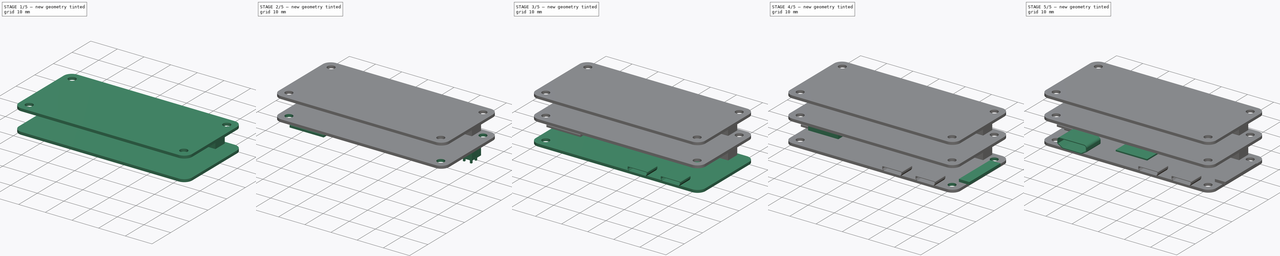
[diagram: build sequence overview — one tinted view per stage of 5, left to right]
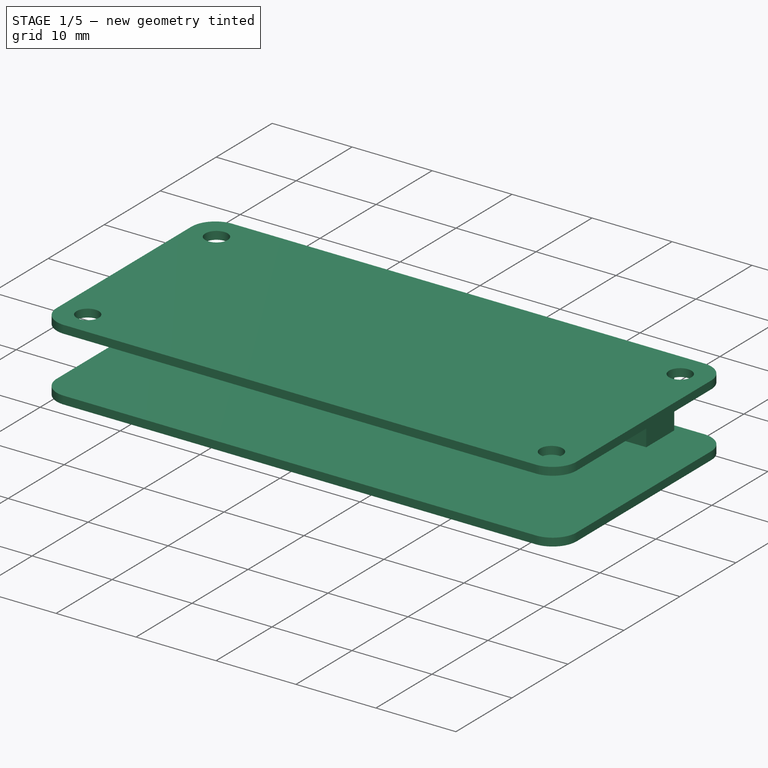
[diagram: stage 1 of 5 — iso view after this stage's code; geometry added in this stage tinted green]
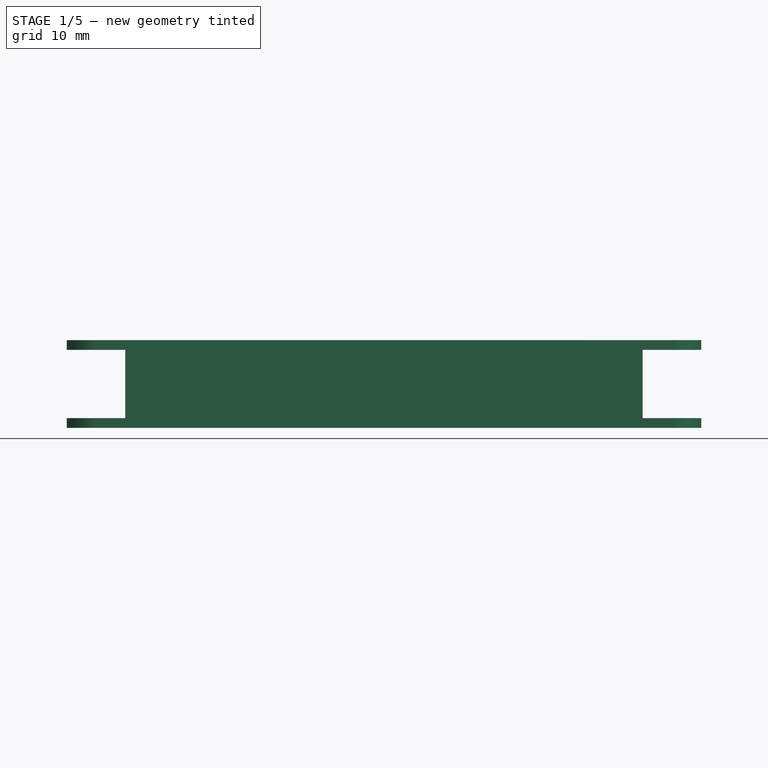
[diagram: stage 1 of 5 — front view after this stage's code; geometry added in this stage tinted green]
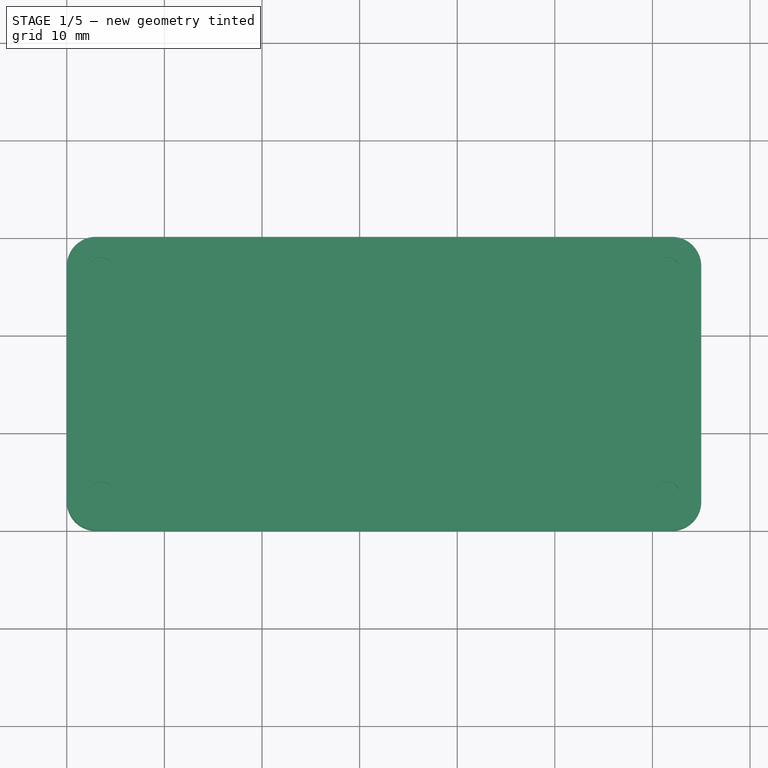
[diagram: stage 1 of 5 — top view after this stage's code; geometry added in this stage tinted green]
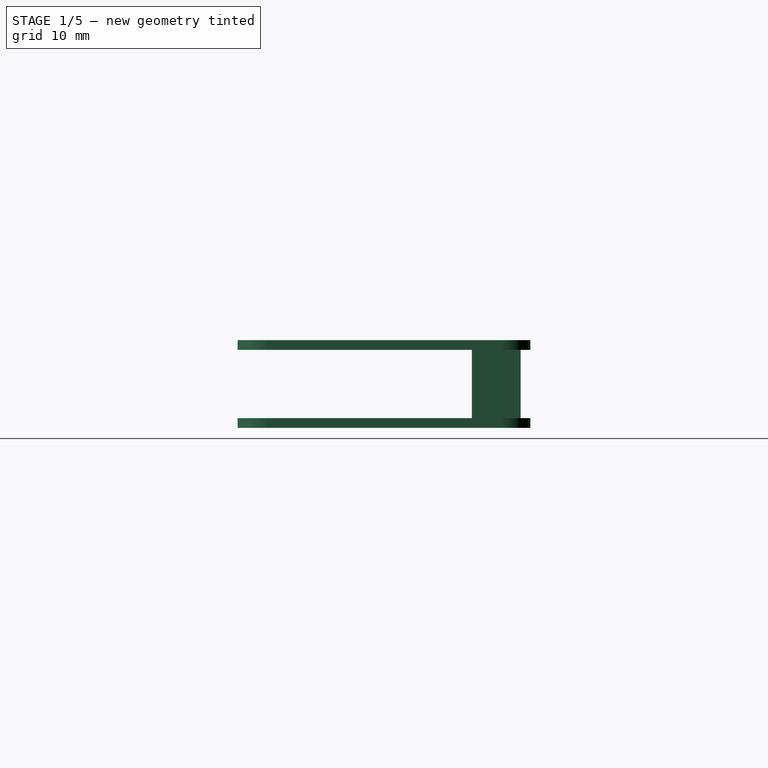
[diagram: stage 1 of 5 — right view after this stage's code; geometry added in this stage tinted green]
FCSTD DOCUMENT  (FreeCAD 1.0R38641 +468 (Git))
Label: PiZeroPCB-V1-1_3-Ver009-030818
License: All rights reserved
LicenseURL: http://en.wikipedia.org/wiki/All_rights_reserved
objects: Sketcher::SketchObject×18, PartDesign::Pad×13, PartDesign::Body×13, PartDesign::ShapeBinder×11, PartDesign::Fillet×8, PartDesign::LinearPattern×8, PartDesign::Pocket×4, App::DocumentObjectGroup×4, PartDesign::Thickness×3, PartDesign::MultiTransform×1, PartDesign::FeatureBase×1, App::Part×1
note: 164 computed .brp shape members not serialized (recipe doc carries the construction recipe); baked Part::Feature solids carry a one-line shape summary decoded from their .brp

FEATURE [PartDesign::Body] Body009  label="40Pin-Female-Header"
  AllowCompound = false
  Group = -> [ReferencePad001,Sketch014,Pad011]
  Origin = -> Origin009
  Tip = -> Pad011
FEATURE [PartDesign::ShapeBinder] ReferencePad011
  Placement = pos=(0,0,5) rot=(0,0,1;0rad)
  Support = -> [Pad011]
  TraceSupport = false
FEATURE [Sketcher::SketchObject] Sketch015
  ArcFitTolerance = 0
  AttachmentSupport = -> [ReferencePad011]
  FullyConstrained = true
  MakeInternals = false
  MapMode = 5
  Placement = pos=(0,0,8.5) rot=(0,0,1;0rad)
  sketch-geometry (4):
    g0: LineSegment StartX=0 StartY=30 StartZ=0 EndX=65 EndY=30 EndZ=0
    g1: LineSegment StartX=65 StartY=30 StartZ=0 EndX=65 EndY=0 EndZ=0
    g2: LineSegment StartX=65 StartY=0 StartZ=0 EndX=0 EndY=0 EndZ=0
    g3: LineSegment StartX=0 StartY=0 StartZ=0 EndX=0 EndY=30 EndZ=0
  constraints (12):
    c: Coincident(g0,g1)
    c: Coincident(g1,g2)
    c: Coincident(g2,g3)
    c: Coincident(g3,g0)
    c: Horizontal(g0)
    c: Horizontal(g2)
    c: Vertical(g1)
    c: Vertical(g3)
    c: DistanceX(g0,g0) = 65
    c: DistanceX(g-1,g2) = 0
    c: DistanceY(g1,g1) = 30
    c: DistanceY(g-1,g1) = 0
FEATURE [PartDesign::Pad] Pad012
  AllowMultiFace = false
  Direction = (0,0,1)
  Length = 1
  Length2 = 100
  Placement = pos=(0,0,5) rot=(0,0,1;0rad)
  Profile = -> Sketch015
  Suppressed = false
  Type = 0
FEATURE [PartDesign::Fillet] Fillet006
  Base = -> Pad012 [Edge8,Edge1,Edge2,Edge5]
  BaseFeature = -> Pad012
  Placement = pos=(0,0,5) rot=(0,0,1;0rad)
  Radius = 3
  Refine = true
  SupportTransform = false
  Suppressed = false
  UseAllEdges = false
FEATURE [PartDesign::Body] Body010  label="Phat PCB"
  AllowCompound = false
  Group = -> [ReferencePad011,Sketch015,Pad012,Fillet006,Sketch016,Pocket002,LinearPattern006]
  Origin = -> Origin010
  Tip = -> LinearPattern006
FEATURE [App::DocumentObjectGroup] Group002  label="Phat 1"
  Group = -> [Body009,Body010]
FEATURE [PartDesign::ShapeBinder] ReferenceLinearPattern006
  Placement = pos=(0,0,5) rot=(0,0,1;0rad)
  Support = -> [LinearPattern006]
  TraceSupport = false
FEATURE [Sketcher::SketchObject] Sketch017
  ArcFitTolerance = 0
  AttachmentSupport = -> [ReferenceLinearPattern006]
  FullyConstrained = true
  MakeInternals = false
  MapMode = 5
  Placement = pos=(0,0,9.5) rot=(0,0,1;0rad)
  sketch-geometry (4):
    g0: LineSegment StartX=6 StartY=29 StartZ=0 EndX=59 EndY=29 EndZ=0
    g1: LineSegment StartX=59 StartY=29 StartZ=0 EndX=59 EndY=24 EndZ=0
    g2: LineSegment StartX=59 StartY=24 StartZ=0 EndX=6 EndY=24 EndZ=0
    g3: LineSegment StartX=6 StartY=24 StartZ=0 EndX=6 EndY=29 EndZ=0
  constraints (12):
    c: Coincident(g0,g1)
    c: Coincident(g1,g2)
    c: Coincident(g2,g3)
    c: Coincident(g3,g0)
    c: Horizontal(g0)
    c: Horizontal(g2)
    c: Vertical(g1)
    c: Vertical(g3)
    c: DistanceY(g1,g1) = 5
    c: DistanceX(g-1,g2) = 6
    c: DistanceX(g0,g0) = 53
    c: DistanceY(g-1,g2) = 24
FEATURE [PartDesign::Pad] Pad013  label="Phat 2 Header"
  AllowMultiFace = false
  Direction = (0,0,1)
  Length = 7
  Length2 = 100
  Placement = pos=(0,0,5) rot=(0,0,1;0rad)
  Profile = -> Sketch017
  Suppressed = false
  Type = 0
FEATURE [PartDesign::Body] Body011  label="Phat 2 40 Pin Header"
  AllowCompound = false
  Group = -> [ReferenceLinearPattern006,Sketch017,Pad013]
  Origin = -> Origin011
  Tip = -> Pad013
FEATURE [PartDesign::ShapeBinder] ReferencePad013
  Placement = pos=(0,0,7) rot=(0,0,1;0rad)
  Support = -> [Pad013]
  TraceSupport = false
FEATURE [Sketcher::SketchObject] Sketch018
  ArcFitTolerance = 0
  AttachmentSupport = -> [ReferencePad013]
  FullyConstrained = true
  MakeInternals = false
  MapMode = 5
  Placement = pos=(0,0,16.5) rot=(0,0,1;0rad)
  sketch-geometry (4):
    g0: LineSegment StartX=0 StartY=30 StartZ=0 EndX=65 EndY=30 EndZ=0
    g1: LineSegment StartX=65 StartY=30 StartZ=0 EndX=65 EndY=0 EndZ=0
    g2: LineSegment StartX=65 StartY=0 StartZ=0 EndX=0 EndY=0 EndZ=0
    g3: LineSegment StartX=0 StartY=0 StartZ=0 EndX=0 EndY=30 EndZ=0
  constraints (12):
    c: Coincident(g0,g1)
    c: Coincident(g1,g2)
    c: Coincident(g2,g3)
    c: Coincident(g3,g0)
    c: Horizontal(g0)
    c: Horizontal(g2)
    c: Vertical(g1)
    c: Vertical(g3)
    c: DistanceX(g0,g0) = 65
    c: DistanceX(g-1,g2) = 0
    c: DistanceY(g1,g1) = 30
    c: DistanceY(g-1,g2) = 0
FEATURE [PartDesign::Pad] Pad014
  AllowMultiFace = false
  Direction = (0,0,1)
  Length = 1
  Length2 = 100
  Placement = pos=(0,0,7) rot=(0,0,1;0rad)
  Profile = -> Sketch018
  Suppressed = false
  Type = 0
FEATURE [PartDesign::Fillet] Fillet007
  Base = -> Pad014 [Edge8,Edge1,Edge5,Edge2]
  BaseFeature = -> Pad014
  Placement = pos=(0,0,7) rot=(0,0,1;0rad)
  Radius = 3
  Refine = true
  SupportTransform = false
  Suppressed = false
  UseAllEdges = false
FEATURE [Sketcher::SketchObject] Sketch019
  ArcFitTolerance = 0
  AttachmentSupport = -> [Fillet007]
  FullyConstrained = true
  MakeInternals = false
  MapMode = 5
  Placement = pos=(0,0,17.5) rot=(0,0,1;0rad)
  sketch-geometry (2):
    g0: Circle CenterX=3.5 CenterY=26.5 CenterZ=0 NormalX=0 NormalY=0 NormalZ=1 AngleXU=0 Radius=1.4
    g1: Circle CenterX=3.5 CenterY=3.5 CenterZ=0 NormalX=0 NormalY=0 NormalZ=1 AngleXU=0 Radius=1.4
  constraints (6):
    c: DistanceX(g-1,g1) = 3.5
    c: DistanceX(g-1,g0) = 3.5
    c: Radius(g0) = 1.4
    c: Radius(g1) = 1.4
    c: DistanceY(g-1,g1) = 3.5
    c: DistanceY(g1,g0) = 23
FEATURE [PartDesign::Pocket] Pocket003
  AllowMultiFace = false
  BaseFeature = -> Fillet007
  Direction = (0,0,-1)
  Length = 5
  Length2 = 100
  Placement = pos=(0,0,7) rot=(0,0,1;0rad)
  Profile = -> Sketch019
  Suppressed = false
  Type = 0
FEATURE [PartDesign::LinearPattern] LinearPattern007
  BaseFeature = -> Pocket003
  Direction = -> Sketch019 [H_Axis]
  Length = 58
  Mode = 0
  Occurrences = 2
  Offset = 58
  Originals = -> [Pocket003]
  Placement = pos=(0,0,7) rot=(0,0,1;0rad)
  Suppressed = false
  TransformMode = 0
FEATURE [PartDesign::Body] Body012  label="Phat 2 PCB"
  AllowCompound = false
  Group = -> [ReferencePad013,Sketch018,Pad014,Fillet007,Sketch019,Pocket003,LinearPattern007]
  Origin = -> Origin012
  Tip = -> LinearPattern007
FEATURE [App::DocumentObjectGroup] Group003  label="Phat 2"
  Group = -> [Body011,Body012]
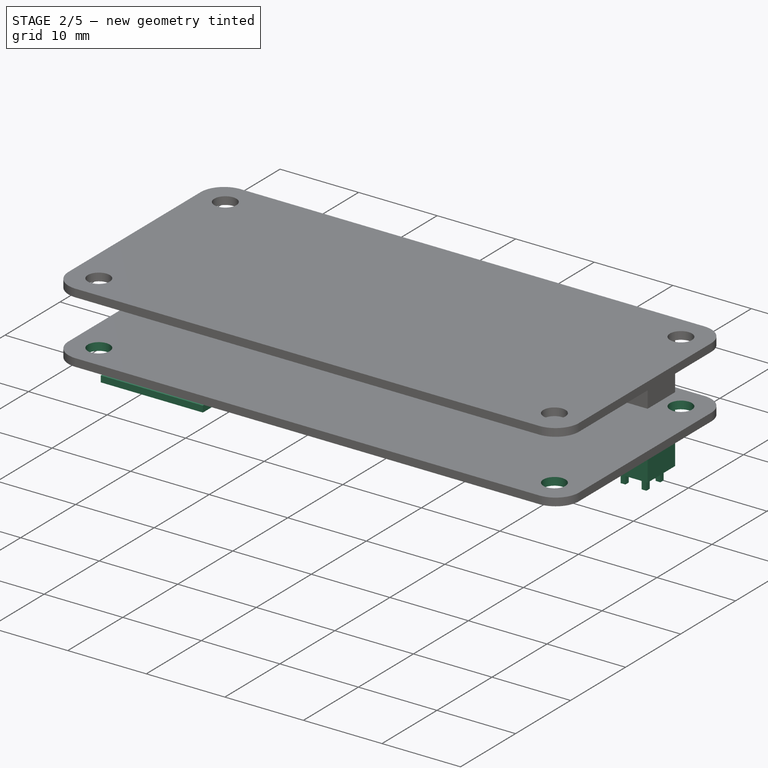
[diagram: stage 2 of 5 — iso view after this stage's code; geometry added in this stage tinted green]
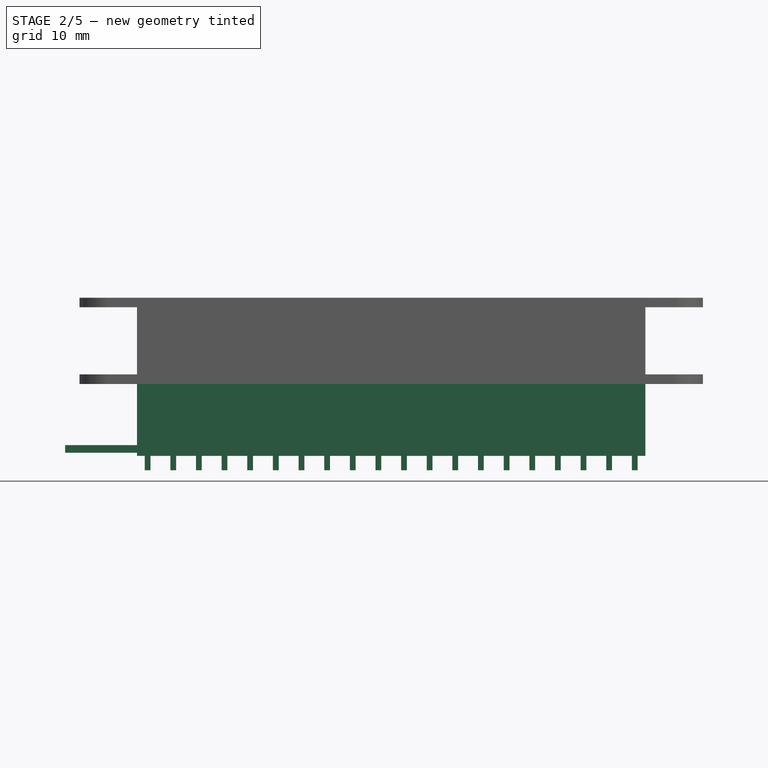
[diagram: stage 2 of 5 — front view after this stage's code; geometry added in this stage tinted green]
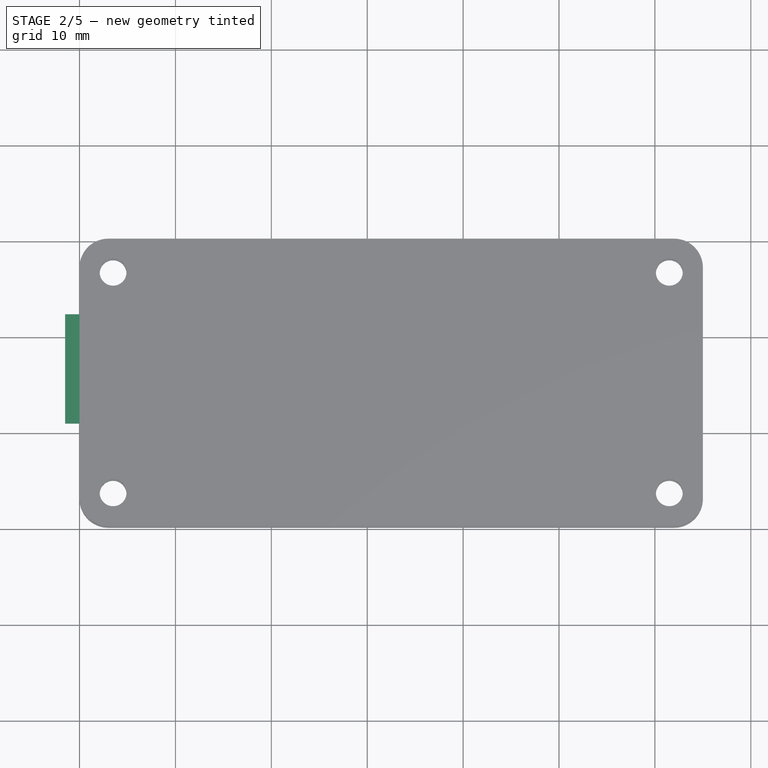
[diagram: stage 2 of 5 — top view after this stage's code; geometry added in this stage tinted green]
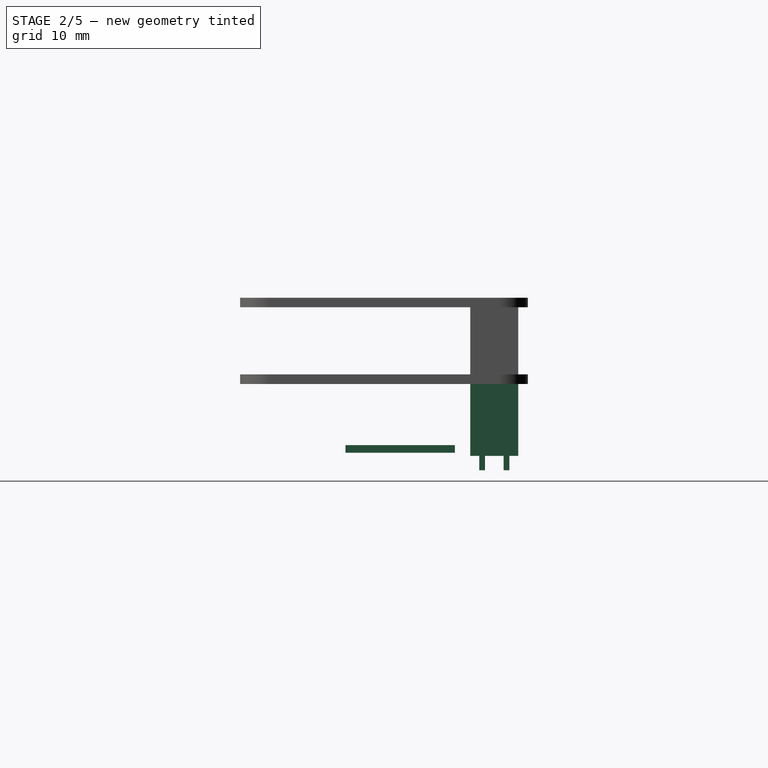
[diagram: stage 2 of 5 — right view after this stage's code; geometry added in this stage tinted green]
FEATURE [PartDesign::ShapeBinder] ReferenceMultiTransform
  Support = -> [MultiTransform]
  TraceSupport = false
FEATURE [Sketcher::SketchObject] Sketch002
  ArcFitTolerance = 0
  AttachmentSupport = -> [ReferenceMultiTransform]
  FullyConstrained = false
  MakeInternals = false
  MapMode = 5
  Placement = pos=(0,0,1) rot=(0,0,1;0rad)
  sketch-geometry (6):
    g0: LineSegment StartX=6 StartY=29 StartZ=0 EndX=59 EndY=29 EndZ=0
    g1: LineSegment StartX=59 StartY=29 StartZ=0 EndX=59 EndY=24 EndZ=0
    g2: LineSegment StartX=59 StartY=24 StartZ=0 EndX=6 EndY=24 EndZ=0
    g3: LineSegment StartX=6 StartY=24 StartZ=0 EndX=6 EndY=29 EndZ=0
    g4: LineSegment [constr] StartX=32.5 StartY=46.2479 StartZ=0 EndX=32.5 EndY=10.9519 EndZ=0
    g5: LineSegment [constr] StartX=27.6198 StartY=26.5 StartZ=0 EndX=36.7296 EndY=26.5 EndZ=0
  constraints (16):
    c: Coincident(g0,g1)
    c: Coincident(g1,g2)
    c: Coincident(g2,g3)
    c: Coincident(g3,g0)
    c: Horizontal(g0)
    c: Horizontal(g2)
    c: Vertical(g1)
    c: Vertical(g3)
    c: DistanceX(g0,g0) = 53
    c: DistanceY(g1,g1) = 5
    c: Vertical(g4)
    c: DistanceX(g-1,g4) = 32.5
    c: Horizontal(g5)
    c: DistanceY(g-1,g5) = 26.5
    c: DistanceY(g5,g0) = 2.5
    c: DistanceX(g2,g4) = 26.5
FEATURE [PartDesign::Pad] Pad001  label="Main Body Header"
  AllowMultiFace = false
  Direction = (0,0,1)
  Length = 2.5
  Length2 = 100
  Profile = -> Sketch002
  Suppressed = false
  Type = 0
FEATURE [PartDesign::Body] Body  label="Zero PCB"
  AllowCompound = false
  Group = -> [Sketch,Pad,Fillet,Sketch001,Pocket,LinearPattern,LinearPattern001,MultiTransform,LinearPattern002,LinearPattern003,Sketch003,Pocket001,LinearPattern004]
  Origin = -> Origin
  Tip = -> LinearPattern004
FEATURE [Sketcher::SketchObject] Sketch005
  ArcFitTolerance = 0
  AttachmentSupport = -> [Pad001]
  ExternalGeometry = -> [Pad001]
  FullyConstrained = true
  MakeInternals = false
  MapMode = 5
  Placement = pos=(0,0,3.5) rot=(0,0,1;0rad)
  sketch-geometry (8):
    g0: LineSegment StartX=6.8 StartY=28.07 StartZ=0 EndX=7.4 EndY=28.07 EndZ=0
    g1: LineSegment StartX=7.4 StartY=28.07 StartZ=0 EndX=7.4 EndY=27.47 EndZ=0
    g2: LineSegment StartX=7.4 StartY=27.47 StartZ=0 EndX=6.8 EndY=27.47 EndZ=0
    g3: LineSegment StartX=6.8 StartY=27.47 StartZ=0 EndX=6.8 EndY=28.07 EndZ=0
    g4: LineSegment StartX=6.8 StartY=25.53 StartZ=0 EndX=7.4 EndY=25.53 EndZ=0
    g5: LineSegment StartX=7.4 StartY=25.53 StartZ=0 EndX=7.4 EndY=24.93 EndZ=0
    g6: LineSegment StartX=7.4 StartY=24.93 StartZ=0 EndX=6.8 EndY=24.93 EndZ=0
    g7: LineSegment StartX=6.8 StartY=24.93 StartZ=0 EndX=6.8 EndY=25.53 EndZ=0
  constraints (24):
    c: Coincident(g0,g1)
    c: Coincident(g1,g2)
    c: Coincident(g2,g3)
    c: Coincident(g3,g0)
    c: Horizontal(g0)
    c: Horizontal(g2)
    c: Vertical(g1)
    c: Vertical(g3)
    c: DistanceY(g1,g1) = 0.6
    c: DistanceX(g0,g0) = 0.6
    c: DistanceX(g-3,g0) = 0.8
    c: DistanceY(g0,g-3) = 0.93
    c: Coincident(g4,g5)
    c: Coincident(g5,g6)
    c: Coincident(g6,g7)
    c: Coincident(g7,g4)
    c: Horizontal(g4)
    c: Horizontal(g6)
    c: Vertical(g5)
    c: Vertical(g7)
    c: DistanceX(g4,g4) = 0.6
    c: DistanceY(g5,g5) = 0.6
    c: DistanceY(g4,g1) = 1.94
    c: DistanceX(g2,g4) = 0
FEATURE [PartDesign::Pad] Pad003  label="Pin1"
  AllowMultiFace = false
  BaseFeature = -> Pad001
  Direction = (0,0,1)
  Length = 6.8
  Length2 = 4
  Profile = -> Sketch005
  Suppressed = false
  Type = 4
FEATURE [PartDesign::Body] CloneBody
  AllowCompound = false
  Group = -> [Clone]
  Origin = -> Origin007
  Tip = -> Clone
FEATURE [App::Part] Part  label="USB002"
  Group = -> [CloneBody]
  License = CC BY 3.0
  LicenseURL = http://creativecommons.org/licenses/by/3.0/
  Origin = -> Origin006
FEATURE [App::DocumentObjectGroup] Group  label="USB-Group"
  Group = -> [Body003,Part]
FEATURE [PartDesign::ShapeBinder] CopyThickness003
  TraceSupport = false
FEATURE [Sketcher::SketchObject] Sketch013
  ArcFitTolerance = 0
  AttachmentSupport = -> [CopyThickness003]
  FullyConstrained = false
  MakeInternals = false
  MapMode = 5
  Placement = pos=(1.5,0,0) rot=(0.57735,-0.57735,-0.57735;2.0944rad)
  sketch-geometry (4):
    g0: LineSegment StartX=-22.3917 StartY=2.12829 StartZ=0 EndX=-10.9917 EndY=2.12829 EndZ=0
    g1: LineSegment StartX=-10.9917 StartY=2.12829 StartZ=0 EndX=-10.9917 EndY=1.32829 EndZ=0
    g2: LineSegment StartX=-10.9917 StartY=1.32829 StartZ=0 EndX=-22.3917 EndY=1.32829 EndZ=0
    g3: LineSegment StartX=-22.3917 StartY=1.32829 StartZ=0 EndX=-22.3917 EndY=2.12829 EndZ=0
  constraints (10):
    c: Coincident(g0,g1)
    c: Coincident(g1,g2)
    c: Coincident(g2,g3)
    c: Coincident(g3,g0)
    c: Horizontal(g0)
    c: Horizontal(g2)
    c: Vertical(g1)
    c: Vertical(g3)
    c: DistanceX(g0,g0) = 11.4
    c: DistanceY(g1,g1) = 0.8
FEATURE [PartDesign::Pad] Pad010
  AllowMultiFace = false
  Direction = (-1,0,0)
  Length = 3
  Length2 = 10
  Profile = -> Sketch013
  Suppressed = false
  Type = 4
FEATURE [PartDesign::Body] Body008  label="MicroSDCard"
  AllowCompound = false
  Group = -> [CopyThickness003,Sketch013,Pad010,Fillet005]
  Origin = -> Origin008
  Tip = -> Fillet005
FEATURE [PartDesign::LinearPattern] LinearPattern005
  BaseFeature = -> Pad003
  Direction = -> Sketch005 [H_Axis]
  Length = 50.8
  Mode = 0
  Occurrences = 20
  Offset = 2.67368
  Originals = -> [Pad003]
  Suppressed = false
  TransformMode = 0
FEATURE [PartDesign::Body] Body001  label="40Pin Header"
  AllowCompound = false
  Group = -> [ReferenceMultiTransform,Sketch002,Pad001,Sketch005,Pad003,LinearPattern005]
  Origin = -> Origin001
  Tip = -> LinearPattern005
FEATURE [App::DocumentObjectGroup] Group001  label="Raspberry Pi Zero 1-1.3"
  Group = -> [Body,Body001,Body002,Body005,Body006,Body007,Group,Body008]
FEATURE [PartDesign::ShapeBinder] ReferencePad001
  Placement = pos=(0,0,2.5) rot=(0,0,1;0rad)
  Support = -> [Pad001]
  TraceSupport = false
FEATURE [Sketcher::SketchObject] Sketch014
  ArcFitTolerance = 0
  AttachmentSupport = -> [ReferencePad001]
  FullyConstrained = true
  MakeInternals = false
  MapMode = 5
  Placement = pos=(0,0,3.5) rot=(0,0,1;0rad)
  sketch-geometry (4):
    g0: LineSegment StartX=6 StartY=29 StartZ=0 EndX=59 EndY=29 EndZ=0
    g1: LineSegment StartX=59 StartY=29 StartZ=0 EndX=59 EndY=24 EndZ=0
    g2: LineSegment StartX=59 StartY=24 StartZ=0 EndX=6 EndY=24 EndZ=0
    g3: LineSegment StartX=6 StartY=24 StartZ=0 EndX=6 EndY=29 EndZ=0
  constraints (12):
    c: Coincident(g0,g1)
    c: Coincident(g1,g2)
    c: Coincident(g2,g3)
    c: Coincident(g3,g0)
    c: Horizontal(g0)
    c: Horizontal(g2)
    c: Vertical(g1)
    c: Vertical(g3)
    c: DistanceX(g-1,g2) = 6
    c: DistanceX(g0,g0) = 53
    c: DistanceY(g1,g1) = 5
    c: DistanceY(g-1,g2) = 24
FEATURE [PartDesign::Pad] Pad011  label="40Pin Female Header"
  AllowMultiFace = false
  Direction = (0,0,1)
  Length = 5
  Length2 = 100
  Placement = pos=(0,0,2.5) rot=(0,0,1;0rad)
  Profile = -> Sketch014
  Suppressed = false
  Type = 0
FEATURE [Sketcher::SketchObject] Sketch016
  ArcFitTolerance = 0
  AttachmentSupport = -> [Fillet006]
  FullyConstrained = true
  MakeInternals = false
  MapMode = 5
  Placement = pos=(0,0,9.5) rot=(0,0,1;0rad)
  sketch-geometry (2):
    g0: Circle CenterX=3.5 CenterY=3.5 CenterZ=0 NormalX=0 NormalY=0 NormalZ=1 AngleXU=0 Radius=1.4
    g1: Circle CenterX=3.5 CenterY=26.5 CenterZ=0 NormalX=0 NormalY=0 NormalZ=1 AngleXU=0 Radius=1.4
  constraints (6):
    c: DistanceX(g-1,g0) = 3.5
    c: DistanceX(g-1,g1) = 3.5
    c: DistanceY(g-1,g0) = 3.5
    c: DistanceY(g0,g1) = 23
    c: Radius(g1) = 1.4
    c: Radius(g0) = 1.4
FEATURE [PartDesign::Pocket] Pocket002
  AllowMultiFace = false
  BaseFeature = -> Fillet006
  Direction = (0,0,-1)
  Length = 5
  Length2 = 100
  Placement = pos=(0,0,5) rot=(0,0,1;0rad)
  Profile = -> Sketch016
  Suppressed = false
  Type = 0
FEATURE [PartDesign::LinearPattern] LinearPattern006
  BaseFeature = -> Pocket002
  Direction = -> Sketch016 [H_Axis]
  Length = 58
  Mode = 0
  Occurrences = 2
  Offset = 58
  Originals = -> [Pocket002]
  Placement = pos=(0,0,5) rot=(0,0,1;0rad)
  Suppressed = false
  TransformMode = 0
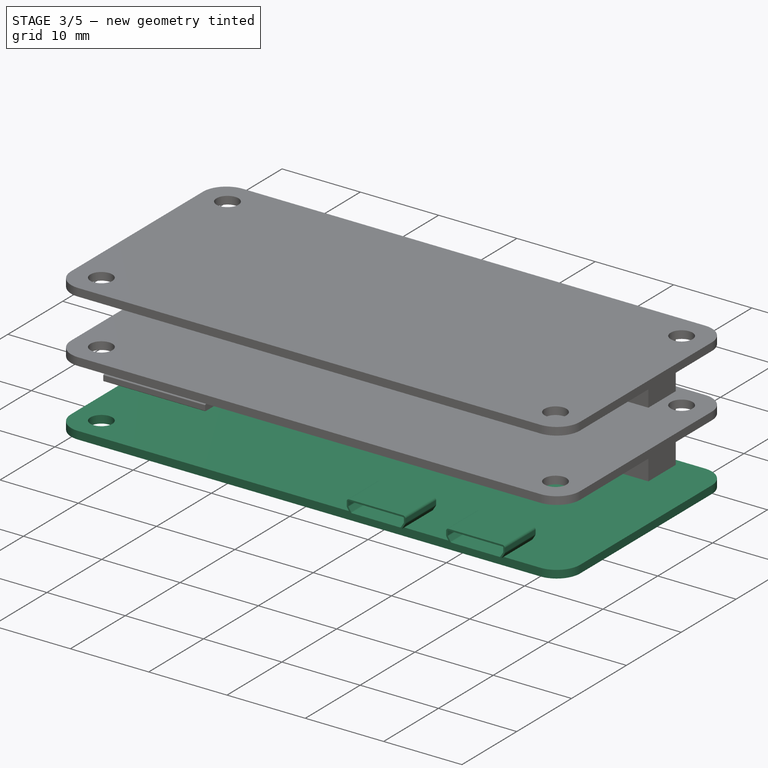
[diagram: stage 3 of 5 — iso view after this stage's code; geometry added in this stage tinted green]
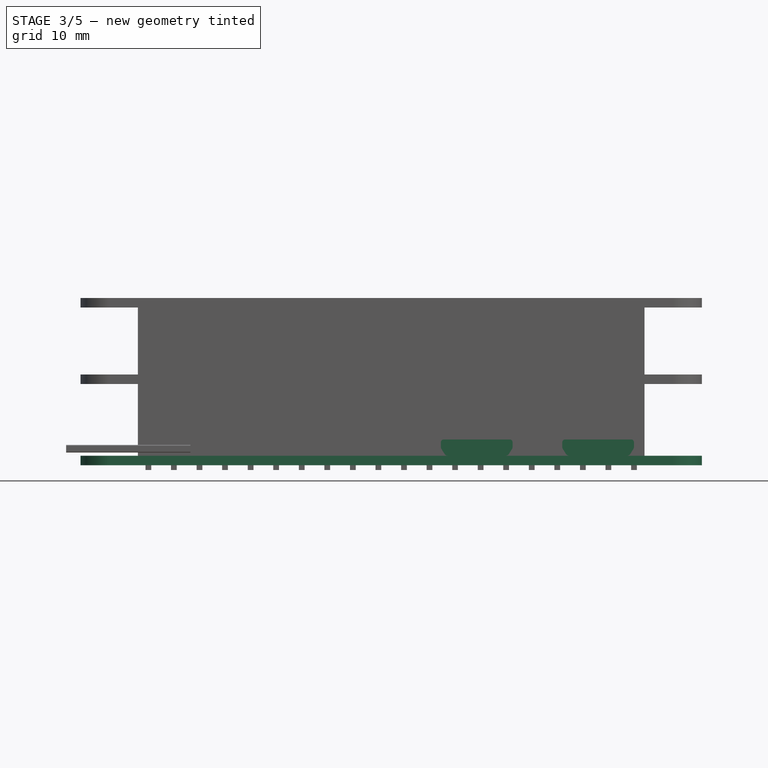
[diagram: stage 3 of 5 — front view after this stage's code; geometry added in this stage tinted green]
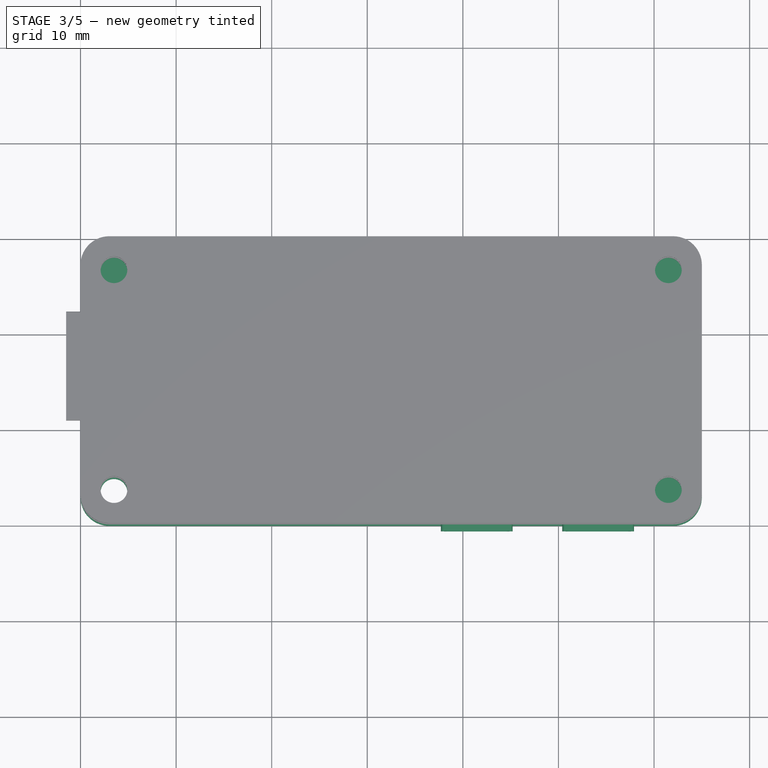
[diagram: stage 3 of 5 — top view after this stage's code; geometry added in this stage tinted green]
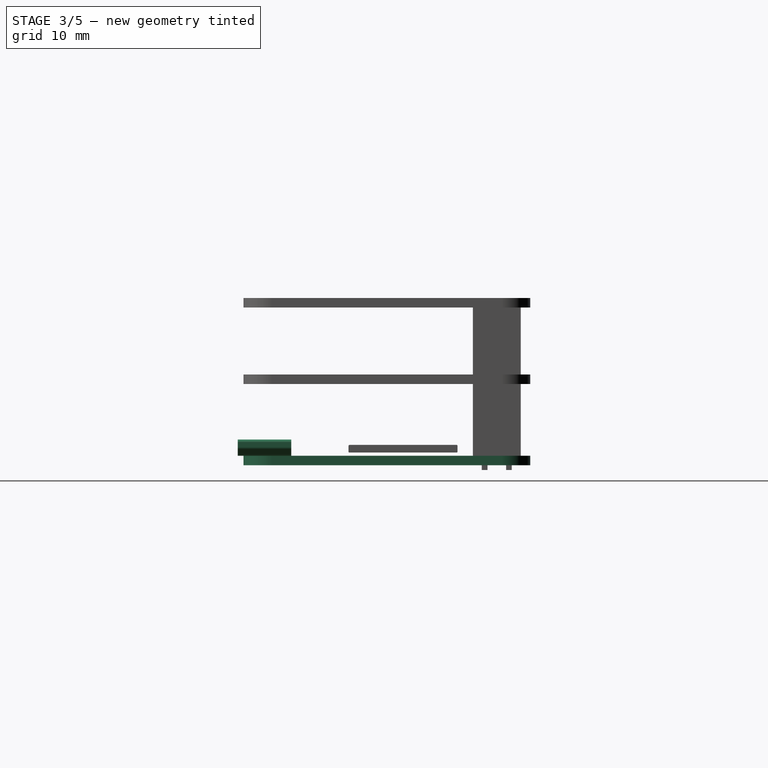
[diagram: stage 3 of 5 — right view after this stage's code; geometry added in this stage tinted green]
FEATURE [Sketcher::SketchObject] Sketch
  ArcFitTolerance = 0
  AttachmentSupport = -> [XY_Plane]
  FullyConstrained = true
  MakeInternals = false
  MapMode = 5
  sketch-geometry (4):
    g0: LineSegment StartX=0 StartY=30 StartZ=0 EndX=65 EndY=30 EndZ=0
    g1: LineSegment StartX=65 StartY=30 StartZ=0 EndX=65 EndY=0 EndZ=0
    g2: LineSegment StartX=65 StartY=0 StartZ=0 EndX=0 EndY=0 EndZ=0
    g3: LineSegment StartX=0 StartY=0 StartZ=0 EndX=0 EndY=30 EndZ=0
  constraints (11):
    c: Coincident(g0,g1)
    c: Coincident(g1,g2)
    c: Coincident(g2,g3)
    c: Coincident(g3,g0)
    c: Horizontal(g0)
    c: Horizontal(g2)
    c: Vertical(g1)
    c: Vertical(g3)
    c: DistanceX(g2,g2) = 65
    c: DistanceY(g1,g1) = 30
    c: Coincident(g2,g-1)
FEATURE [PartDesign::Pad] Pad  label="MaIn PCB"
  AllowMultiFace = false
  Direction = (0,0,1)
  Length = 1
  Length2 = 100
  Profile = -> Sketch
  Suppressed = false
  Type = 0
FEATURE [PartDesign::Fillet] Fillet
  Base = -> Pad [Edge8,Edge2,Edge1,Edge5]
  BaseFeature = -> Pad
  Radius = 3
  Refine = true
  SupportTransform = false
  Suppressed = false
  UseAllEdges = false
FEATURE [Sketcher::SketchObject] Sketch001
  ArcFitTolerance = 0
  AttachmentSupport = -> [Fillet]
  ExternalGeometry = -> [Fillet]
  FullyConstrained = true
  MakeInternals = false
  MapMode = 5
  Placement = pos=(0,0,1) rot=(0,0,1;0rad)
  sketch-geometry (1):
    g0: Circle CenterX=3.5 CenterY=3.5 CenterZ=0 NormalX=0 NormalY=0 NormalZ=1 AngleXU=0 Radius=1.4
  constraints (3):
    c: DistanceX(g-3,g0) = 3.5
    c: DistanceY(g-4,g0) = 3.5
    c: Radius(g0) = 1.4
FEATURE [PartDesign::Pocket] Pocket  label="Bolt Holes"
  AllowMultiFace = false
  BaseFeature = -> Fillet
  Direction = (0,0,-1)
  Length = 5
  Length2 = 100
  Profile = -> Sketch001
  Suppressed = false
  Type = 0
FEATURE [PartDesign::ShapeBinder] ReferenceLinearPattern004001
  Support = -> [LinearPattern004]
  TraceSupport = false
FEATURE [Sketcher::SketchObject] Sketch007
  ArcFitTolerance = 0
  AttachmentSupport = -> [ReferenceLinearPattern004001]
  FullyConstrained = false
  MakeInternals = false
  MapMode = 5
  Placement = pos=(0,0,0) rot=(1,0,0;1.5708rad)
  sketch-geometry (8):
    g0: LineSegment StartX=44.9 StartY=2.7 StartZ=0 EndX=38 EndY=2.7 EndZ=0
    g1: LineSegment StartX=38.2 StartY=1 StartZ=0 EndX=44.7 EndY=1 EndZ=0
    g2: LineSegment StartX=44.7 StartY=1 StartZ=0 EndX=45.2 EndY=1.8 EndZ=0
    g3: LineSegment StartX=45.2 StartY=1.8 StartZ=0 EndX=45.2 EndY=2.4 EndZ=0
    g4: LineSegment StartX=38.2 StartY=1 StartZ=0 EndX=37.7 EndY=1.8 EndZ=0
    g5: LineSegment StartX=37.7 StartY=1.8 StartZ=0 EndX=37.7 EndY=2.4 EndZ=0
    g6: ArcOfCircle CenterX=44.9 CenterY=2.4 CenterZ=0 NormalX=0 NormalY=0 NormalZ=1 AngleXU=0 Radius=0.3 StartAngle=0 EndAngle=1.5708
    g7: ArcOfCircle CenterX=38 CenterY=2.4 CenterZ=0 NormalX=0 NormalY=0 NormalZ=1 AngleXU=0 Radius=0.3 StartAngle=1.5708 EndAngle=3.14159
  constraints (20):
    c: Horizontal(g0)
    c: Horizontal(g1)
    c: DistanceY(g-1,g1) = 1
    c: Coincident(g1,g2)
    c: Coincident(g2,g3)
    c: Coincident(g1,g4)
    c: Coincident(g4,g5)
    c: Vertical(g5)
    c: Vertical(g3)
    c: DistanceX(g4,g2) = 7.5
    c: Tangent(g0,g6) = -1.5708
    c: Tangent(g3,g6) = -1.5708
    c: Tangent(g5,g7) = 1.5708
    c: Tangent(g0,g7) = -1.5708
    c: Radius(g6) = 0.3
    c: DistanceY(g1,g0) = 1.7
    c: DistanceX(g-1,g4) = 37.7
    c: Radius(g7) = 0.3
    c: DistanceX(g4,g1) = 0.5
    c: DistanceX(g1,g2) = 0.5
FEATURE [PartDesign::Pad] Pad005
  AllowMultiFace = false
  Direction = (0,-1,2e-16)
  Length = 0.6
  Length2 = 5
  Profile = -> Sketch007
  Suppressed = false
  Type = 4
FEATURE [PartDesign::Fillet] Fillet004
  Base = -> Pad005 [Edge20,Edge1,Edge5,Edge2]
  BaseFeature = -> Pad005
  Radius = 0.4
  Refine = true
  SupportTransform = false
  Suppressed = false
  UseAllEdges = false
FEATURE [PartDesign::Thickness] Thickness
  Base = -> Fillet004 [Face5]
  BaseFeature = -> Fillet004
  Intersection = false
  Join = 0
  Mode = 0
  Refine = true
  Reversed = true
  SupportTransform = false
  Suppressed = false
  Value = 0.2
FEATURE [PartDesign::Body] Body007  label="Camera1.3"
  AllowCompound = false
  Group = -> [ReferenceLinearPattern004005,Sketch012,Pad009]
  Origin = -> Origin005
  Tip = -> Pad009
FEATURE [PartDesign::FeatureBase] Clone  label="USB1"
  Placement = pos=(12.7,0,0) rot=(0,0,1;0rad)
  Suppressed = false
FEATURE [PartDesign::Fillet] Fillet005
  Base = -> Pad010 [Edge2,Edge5,Edge8,Edge1]
  BaseFeature = -> Pad010
  Radius = 0.1
  Refine = true
  SupportTransform = false
  Suppressed = false
  UseAllEdges = false
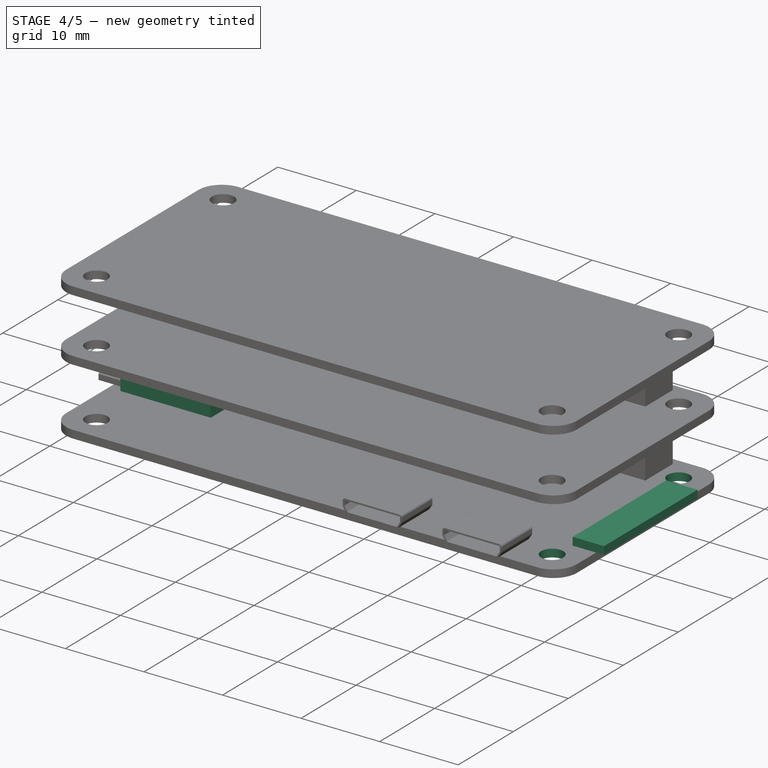
[diagram: stage 4 of 5 — iso view after this stage's code; geometry added in this stage tinted green]
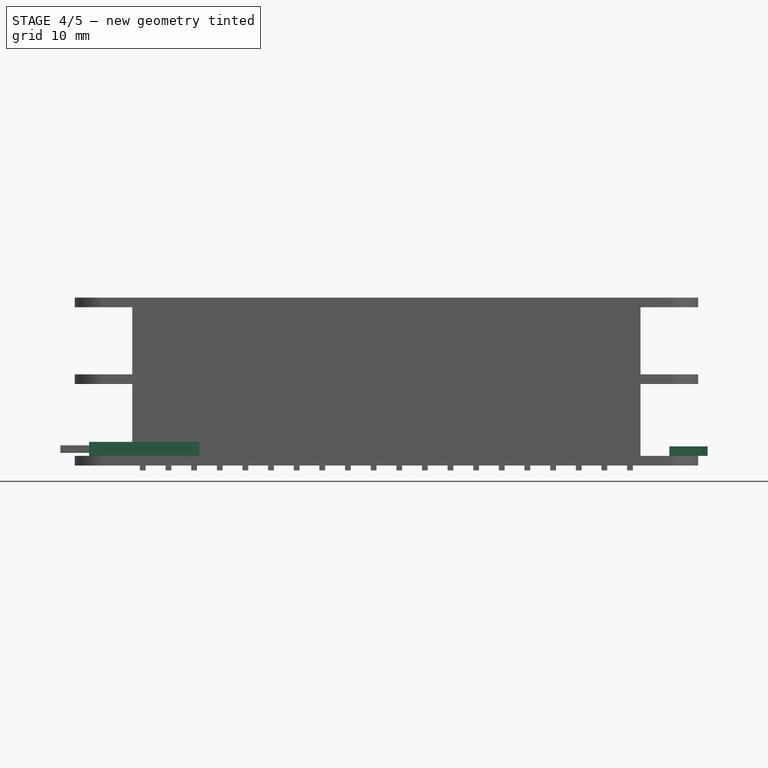
[diagram: stage 4 of 5 — front view after this stage's code; geometry added in this stage tinted green]
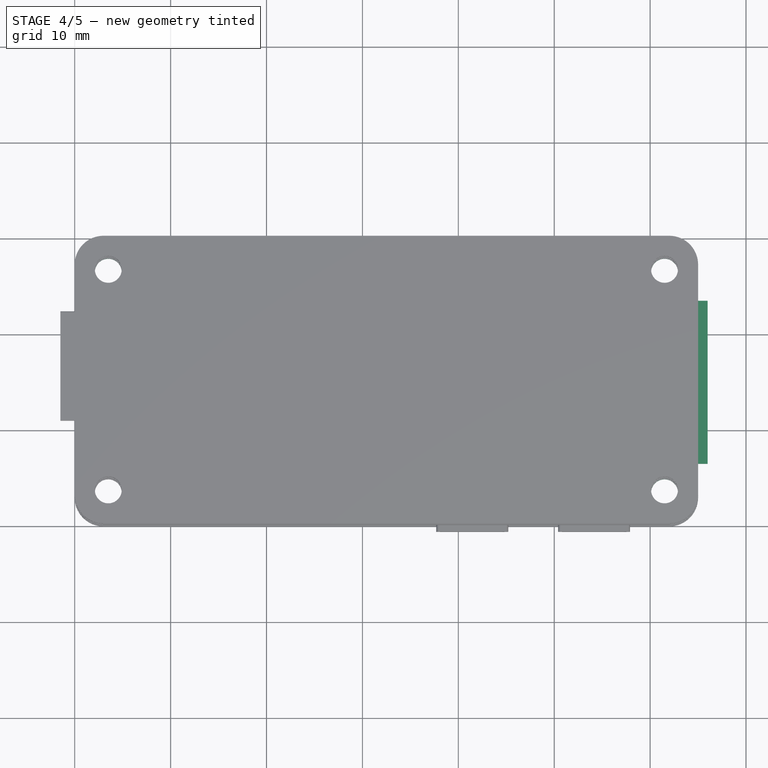
[diagram: stage 4 of 5 — top view after this stage's code; geometry added in this stage tinted green]
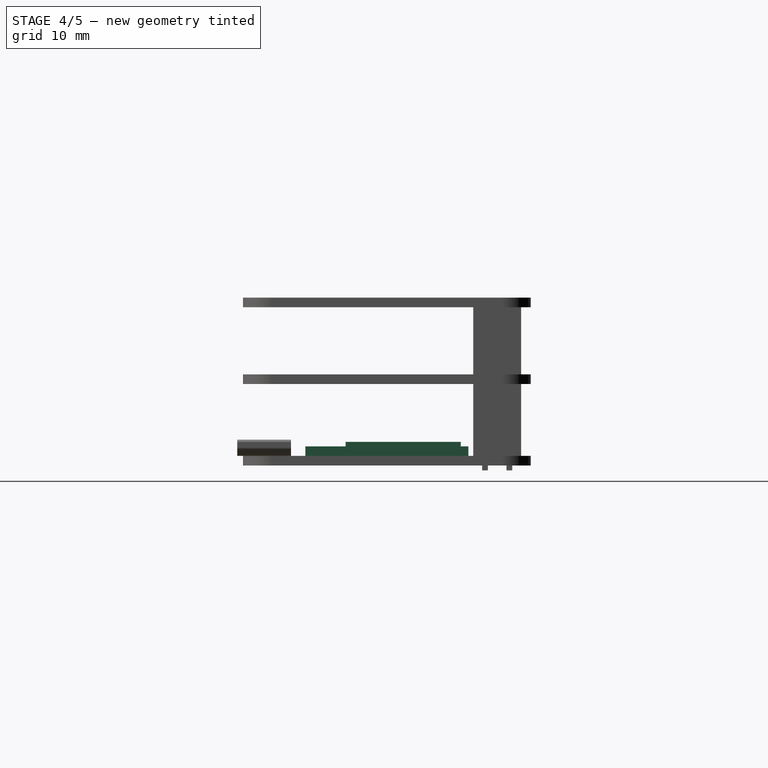
[diagram: stage 4 of 5 — right view after this stage's code; geometry added in this stage tinted green]
FEATURE [PartDesign::LinearPattern] LinearPattern
  BaseFeature = -> Pocket
  Direction = -> Sketch001 [H_Axis]
  Length = 58
  Mode = 0
  Occurrences = 2
  Offset = 58
  Originals = -> [Pocket]
  Suppressed = false
  TransformMode = 0
FEATURE [PartDesign::LinearPattern] LinearPattern001
  BaseFeature = -> LinearPattern
  Direction = -> Sketch001 [V_Axis]
  Length = 23
  Mode = 0
  Occurrences = 2
  Offset = 23
  Originals = -> [Pocket]
  Suppressed = false
  TransformMode = 0
FEATURE [PartDesign::LinearPattern] LinearPattern002
  Direction = -> Sketch001 [H_Axis]
  Length = 58
  Mode = 0
  Occurrences = 2
  Offset = 58
  Suppressed = false
  TransformMode = 0
FEATURE [PartDesign::LinearPattern] LinearPattern003
  Direction = -> Sketch001 [V_Axis]
  Length = 23
  Mode = 0
  Occurrences = 2
  Offset = 23
  Suppressed = false
  TransformMode = 0
FEATURE [PartDesign::MultiTransform] MultiTransform
  BaseFeature = -> LinearPattern001
  Originals = -> [Pocket]
  Suppressed = false
  TransformMode = 0
  Transformations = -> [LinearPattern002,LinearPattern003]
FEATURE [Sketcher::SketchObject] Sketch003
  ArcFitTolerance = 0
  AttachmentSupport = -> [MultiTransform]
  ExternalGeometry = -> [MultiTransform]
  FullyConstrained = true
  MakeInternals = false
  MapMode = 5
  Placement = pos=(0,0,1) rot=(0,0,1;0rad)
  sketch-geometry (2):
    g0: Circle CenterX=7.1 CenterY=27.77 CenterZ=0 NormalX=0 NormalY=0 NormalZ=1 AngleXU=0 Radius=0.5
    g1: Circle CenterX=7.1 CenterY=25.23 CenterZ=0 NormalX=0 NormalY=0 NormalZ=1 AngleXU=0 Radius=0.5
  constraints (6):
    c: DistanceX(g-1,g0) = 7.1
    c: DistanceY(g0,g-3) = 2.23
    c: Radius(g0) = 0.5
    c: DistanceY(g1,g0) = 2.54
    c: DistanceX(g1,g0) = 0
    c: Radius(g1) = 0.5
FEATURE [PartDesign::Pocket] Pocket001  label="Header Holes"
  AllowMultiFace = false
  BaseFeature = -> MultiTransform
  Direction = (0,0,-1)
  Length = 5
  Length2 = 100
  Profile = -> Sketch003
  Suppressed = false
  Type = 0
FEATURE [PartDesign::LinearPattern] LinearPattern004
  BaseFeature = -> Pocket001
  Direction = -> Sketch003 [H_Axis]
  Length = 50.8
  Mode = 0
  Occurrences = 20
  Offset = 2.67368
  Originals = -> [Pocket001]
  Suppressed = false
  TransformMode = 0
FEATURE [PartDesign::Body] Body005  label="Processor"
  AllowCompound = false
  Group = -> [ReferenceLinearPattern004003,Sketch010,Pad007]
  Origin = -> Origin003
  Tip = -> Pad007
FEATURE [PartDesign::ShapeBinder] ReferenceLinearPattern004004
  Support = -> [LinearPattern004]
  TraceSupport = false
FEATURE [Sketcher::SketchObject] Sketch011
  ArcFitTolerance = 0
  AttachmentSupport = -> [ReferenceLinearPattern004004]
  FullyConstrained = true
  MakeInternals = false
  MapMode = 5
  Placement = pos=(0,0,1) rot=(0,0,1;0rad)
  sketch-geometry (4):
    g0: LineSegment StartX=1.5 StartY=22.7 StartZ=0 EndX=13 EndY=22.7 EndZ=0
    g1: LineSegment StartX=13 StartY=22.7 StartZ=0 EndX=13 EndY=10.7 EndZ=0
    g2: LineSegment StartX=13 StartY=10.7 StartZ=0 EndX=1.5 EndY=10.7 EndZ=0
    g3: LineSegment StartX=1.5 StartY=10.7 StartZ=0 EndX=1.5 EndY=22.7 EndZ=0
  constraints (12):
    c: Coincident(g0,g1)
    c: Coincident(g1,g2)
    c: Coincident(g2,g3)
    c: Coincident(g3,g0)
    c: Horizontal(g0)
    c: Horizontal(g2)
    c: Vertical(g1)
    c: Vertical(g3)
    c: DistanceX(g-1,g0) = 13
    c: DistanceY(g2,g0) = 12
    c: DistanceY(g-1,g2) = 10.7
    c: DistanceX(g-1,g2) = 1.5
FEATURE [PartDesign::Pad] Pad008
  AllowMultiFace = false
  Direction = (0,0,1)
  Length = 1.46
  Length2 = 100
  Profile = -> Sketch011
  Suppressed = false
  Type = 0
FEATURE [PartDesign::Body] Body006  label="SDCard"
  AllowCompound = false
  Group = -> [ReferenceLinearPattern004004,Sketch011,Pad008,Fillet003,Thickness003]
  Origin = -> Origin004
  Tip = -> Thickness003
FEATURE [PartDesign::ShapeBinder] ReferenceLinearPattern004005
  Support = -> [LinearPattern004]
  TraceSupport = false
FEATURE [Sketcher::SketchObject] Sketch012
  ArcFitTolerance = 0
  AttachmentSupport = -> [ReferenceLinearPattern004005]
  FullyConstrained = true
  MakeInternals = false
  MapMode = 5
  Placement = pos=(65,0,0) rot=(0.57735,0.57735,0.57735;2.0944rad)
  sketch-geometry (4):
    g0: LineSegment StartX=6.5 StartY=2 StartZ=0 EndX=23.5 EndY=2 EndZ=0
    g1: LineSegment StartX=23.5 StartY=2 StartZ=0 EndX=23.5 EndY=1 EndZ=0
    g2: LineSegment StartX=23.5 StartY=1 StartZ=0 EndX=6.5 EndY=1 EndZ=0
    g3: LineSegment StartX=6.5 StartY=1 StartZ=0 EndX=6.5 EndY=2 EndZ=0
  constraints (12):
    c: Coincident(g0,g1)
    c: Coincident(g1,g2)
    c: Coincident(g2,g3)
    c: Coincident(g3,g0)
    c: Horizontal(g0)
    c: Horizontal(g2)
    c: Vertical(g1)
    c: Vertical(g3)
    c: DistanceY(g-1,g2) = 1
    c: DistanceY(g1,g1) = 1
    c: DistanceX(g0,g0) = 17
    c: DistanceX(g-1,g2) = 6.5
FEATURE [PartDesign::Pad] Pad009  label="Camera Connector"
  AllowMultiFace = false
  Direction = (1,0,0)
  Length = 1
  Length2 = 3
  Profile = -> Sketch012
  Suppressed = false
  Type = 4
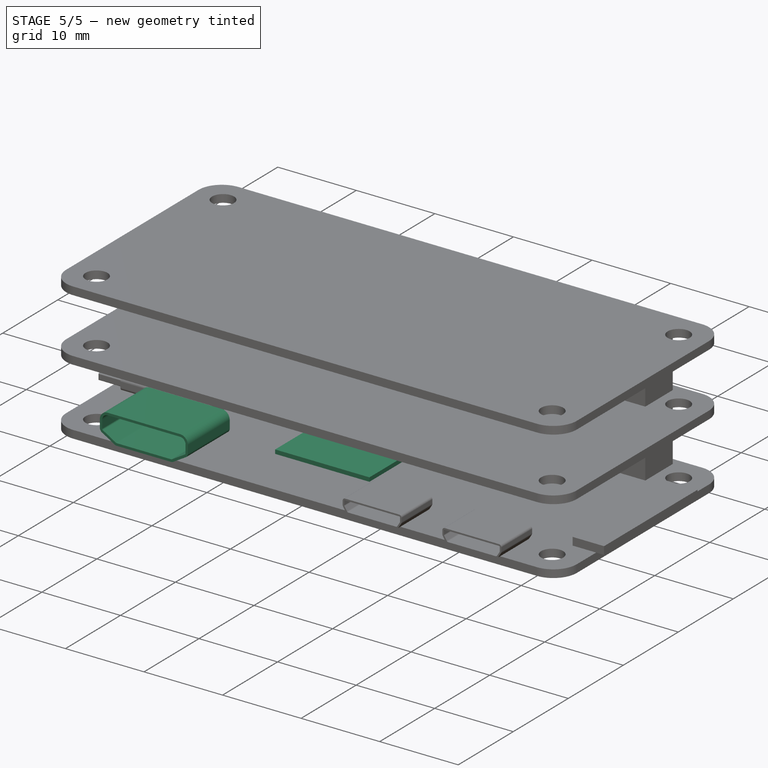
[diagram: stage 5 of 5 — iso view after this stage's code; geometry added in this stage tinted green]
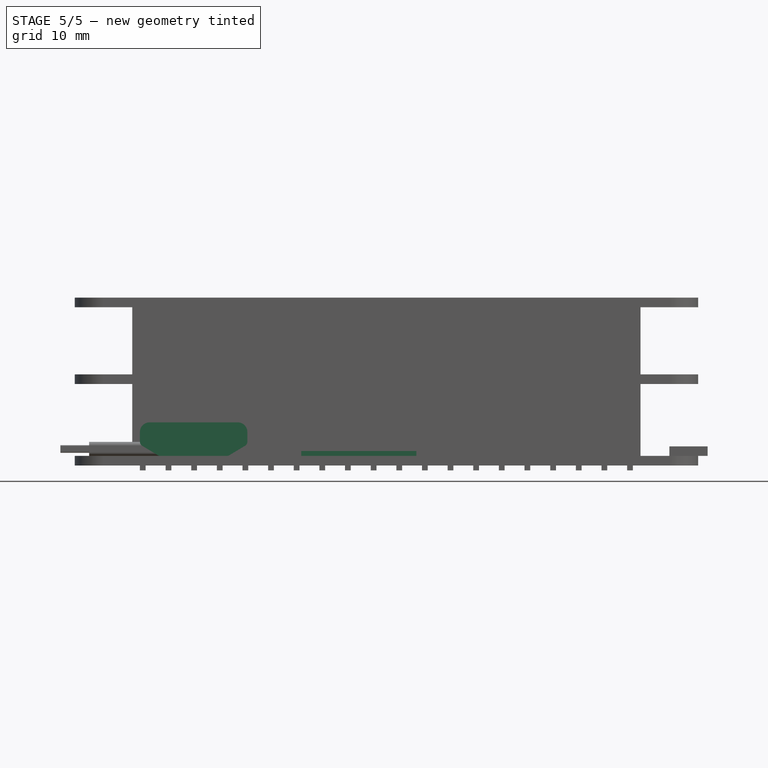
[diagram: stage 5 of 5 — front view after this stage's code; geometry added in this stage tinted green]
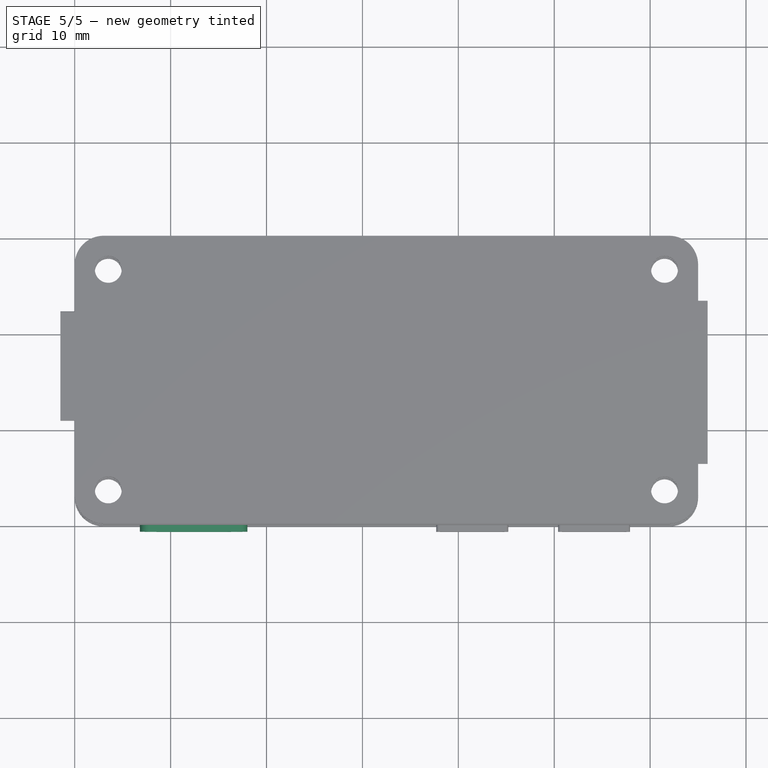
[diagram: stage 5 of 5 — top view after this stage's code; geometry added in this stage tinted green]
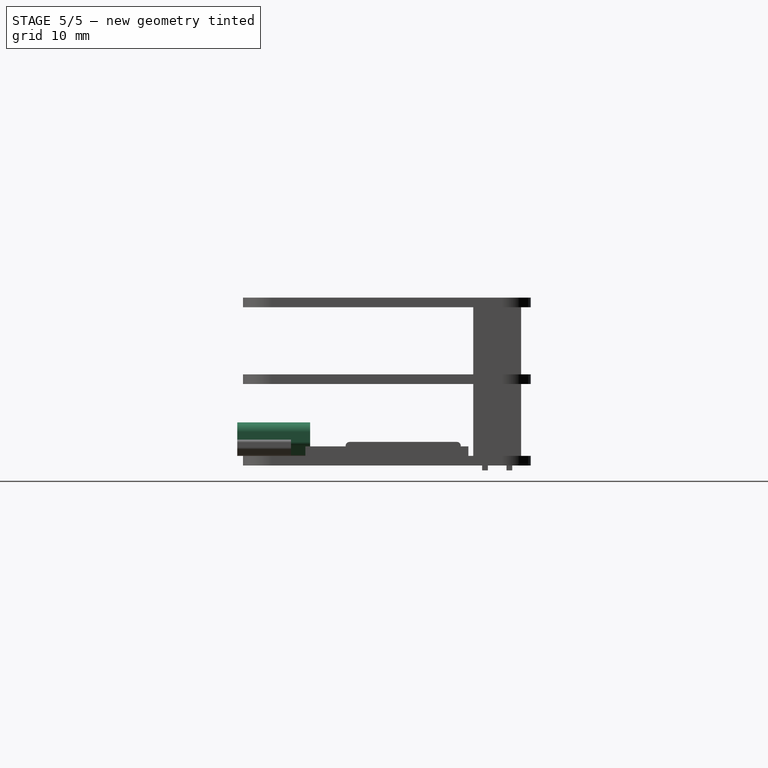
[diagram: stage 5 of 5 — right view after this stage's code; geometry added in this stage tinted green]
FEATURE [PartDesign::ShapeBinder] ReferenceLinearPattern004
  Support = -> [LinearPattern004]
  TraceSupport = false
FEATURE [Sketcher::SketchObject] Sketch006
  ArcFitTolerance = 0
  AttachmentSupport = -> [ReferenceLinearPattern004]
  FullyConstrained = true
  MakeInternals = false
  MapMode = 5
  Placement = pos=(0,0,0) rot=(1,0,0;1.5708rad)
  sketch-geometry (6):
    g0: LineSegment StartX=18 StartY=4.5 StartZ=0 EndX=6.8 EndY=4.5 EndZ=0
    g1: LineSegment StartX=6.8 StartY=4.5 StartZ=0 EndX=6.8 EndY=2.2 EndZ=0
    g2: LineSegment StartX=6.8 StartY=2.2 StartZ=0 EndX=8.8 EndY=1 EndZ=0
    g3: LineSegment StartX=8.8 StartY=1 StartZ=0 EndX=16 EndY=1 EndZ=0
    g4: LineSegment StartX=16 StartY=1 StartZ=0 EndX=18 EndY=2.2 EndZ=0
    g5: LineSegment StartX=18 StartY=2.2 StartZ=0 EndX=18 EndY=4.5 EndZ=0
  constraints (18):
    c: Horizontal(g0)
    c: Coincident(g0,g1)
    c: Vertical(g1)
    c: Coincident(g1,g2)
    c: Coincident(g2,g3)
    c: Horizontal(g3)
    c: Coincident(g3,g4)
    c: Coincident(g4,g5)
    c: Coincident(g5,g0)
    c: Vertical(g5)
    c: DistanceY(g3,g0) = 3.5
    c: DistanceX(g0,g0) = 11.2
    c: DistanceY(g1,g1) = 2.3
    c: DistanceY(g5,g5) = 2.3
    c: DistanceX(g3,g3) = 7.2
    c: DistanceX(g1,g2) = 2
    c: DistanceX(g-1,g0) = 6.8
    c: DistanceY(g-1,g2) = 1
FEATURE [PartDesign::Pad] Pad004
  AllowMultiFace = false
  Direction = (0,-1,2e-16)
  Length = 0.6
  Length2 = 7
  Profile = -> Sketch006
  Suppressed = false
  Type = 4
FEATURE [PartDesign::Fillet] Fillet001
  Base = -> Pad004 [Edge2,Edge1]
  BaseFeature = -> Pad004
  Radius = 1
  Refine = true
  SupportTransform = false
  Suppressed = false
  UseAllEdges = false
FEATURE [PartDesign::Fillet] Fillet002
  Base = -> Fillet001 [Edge22,Edge24,Edge23,Edge21]
  BaseFeature = -> Fillet001
  Radius = 0.5
  Refine = true
  SupportTransform = false
  Suppressed = false
  UseAllEdges = false
FEATURE [Sketcher::SketchObject] Sketch009
  ArcFitTolerance = 0
  AttachmentSupport = -> [Fillet002]
  FullyConstrained = true
  MakeInternals = false
  MapMode = 5
  Placement = pos=(0,-0.6,0) rot=(1,0,0;1.5708rad)
FEATURE [PartDesign::ShapeBinder] ReferenceLinearPattern004003
  Support = -> [LinearPattern004]
  TraceSupport = false
FEATURE [Sketcher::SketchObject] Sketch010
  ArcFitTolerance = 0
  AttachmentSupport = -> [ReferenceLinearPattern004003]
  FullyConstrained = true
  MakeInternals = false
  MapMode = 5
  Placement = pos=(0,0,1) rot=(0,0,1;0rad)
  sketch-geometry (4):
    g0: LineSegment StartX=23.62 StartY=19.24 StartZ=0 EndX=35.62 EndY=19.24 EndZ=0
    g1: LineSegment StartX=35.62 StartY=19.24 StartZ=0 EndX=35.62 EndY=7.24 EndZ=0
    g2: LineSegment StartX=35.62 StartY=7.24 StartZ=0 EndX=23.62 EndY=7.24 EndZ=0
    g3: LineSegment StartX=23.62 StartY=7.24 StartZ=0 EndX=23.62 EndY=19.24 EndZ=0
  constraints (12):
    c: Coincident(g0,g1)
    c: Coincident(g1,g2)
    c: Coincident(g2,g3)
    c: Coincident(g3,g0)
    c: Horizontal(g0)
    c: Horizontal(g2)
    c: Vertical(g1)
    c: Vertical(g3)
    c: DistanceX(g0,g0) = 12
    c: DistanceY(g1,g1) = 12
    c: DistanceY(g-1,g2) = 7.24
    c: DistanceX(g-1,g2) = 23.62
FEATURE [PartDesign::Pad] Pad007  label="Processor001"
  AllowMultiFace = false
  Direction = (0,0,1)
  Length = 0.51
  Length2 = 100
  Profile = -> Sketch010
  Suppressed = false
  Type = 0
FEATURE [PartDesign::Fillet] Fillet003
  Base = -> Pad008 [Edge10,Edge9,Edge4,Edge3]
  BaseFeature = -> Pad008
  Radius = 0.4
  Refine = true
  SupportTransform = false
  Suppressed = false
  UseAllEdges = false
FEATURE [PartDesign::Body] Body003  label="USB"
  AllowCompound = false
  Group = -> [ReferenceLinearPattern004001,Sketch007,Pad005,Fillet004,Thickness]
  Tip = -> Thickness
FEATURE [PartDesign::Thickness] Thickness002
  Base = -> Fillet002 [Face14]
  BaseFeature = -> Fillet002
  Intersection = false
  Join = 0
  Mode = 0
  Refine = true
  Reversed = true
  SupportTransform = false
  Suppressed = false
  Value = 0.3
FEATURE [PartDesign::Body] Body002  label="HDMI"
  AllowCompound = false
  Group = -> [ReferenceLinearPattern004,Sketch006,Pad004,Fillet001,Fillet002,Sketch009,Thickness002]
  Origin = -> Origin002
  Tip = -> Thickness002
FEATURE [PartDesign::Thickness] Thickness003
  Base = -> Fillet003 [Face2]
  BaseFeature = -> Fillet003
  Intersection = false
  Join = 0
  Mode = 0
  Refine = true
  Reversed = true
  SupportTransform = false
  Suppressed = false
  Value = 0.2
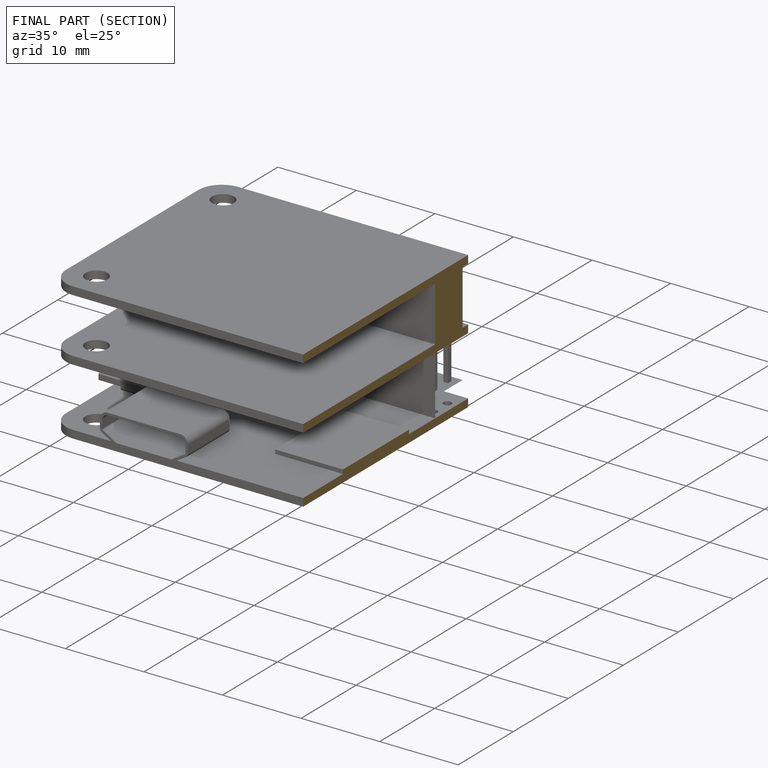
[diagram: finished part — half-section view (interior)]
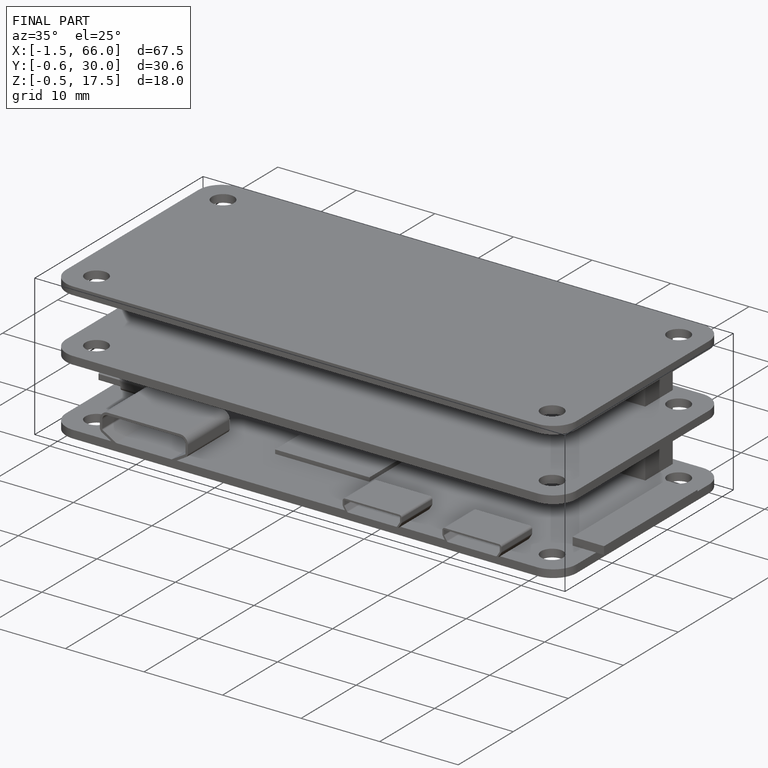
[diagram: finished part — iso view with bounding-box wireframe]
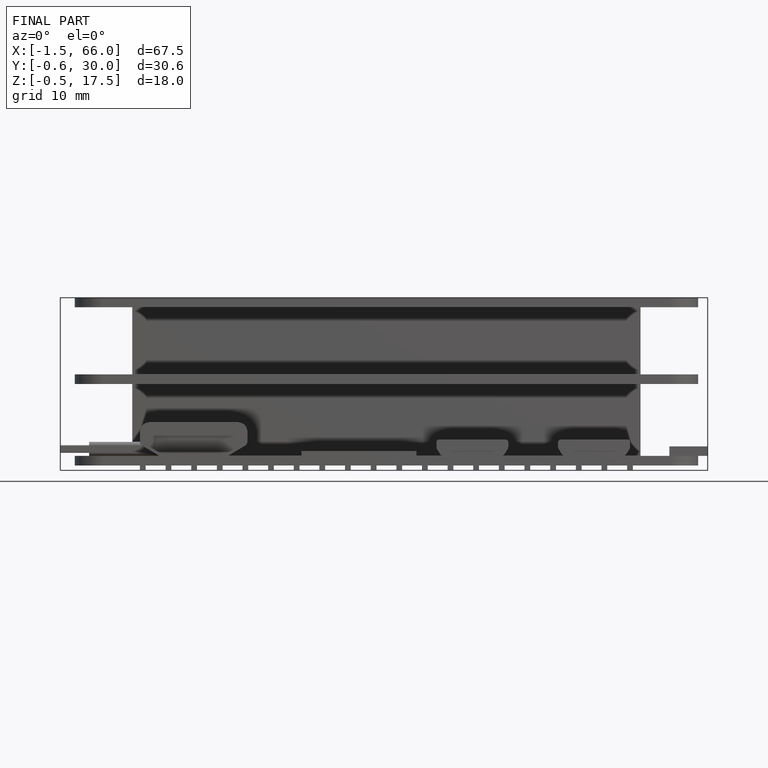
[diagram: finished part — front view with bounding-box wireframe]
